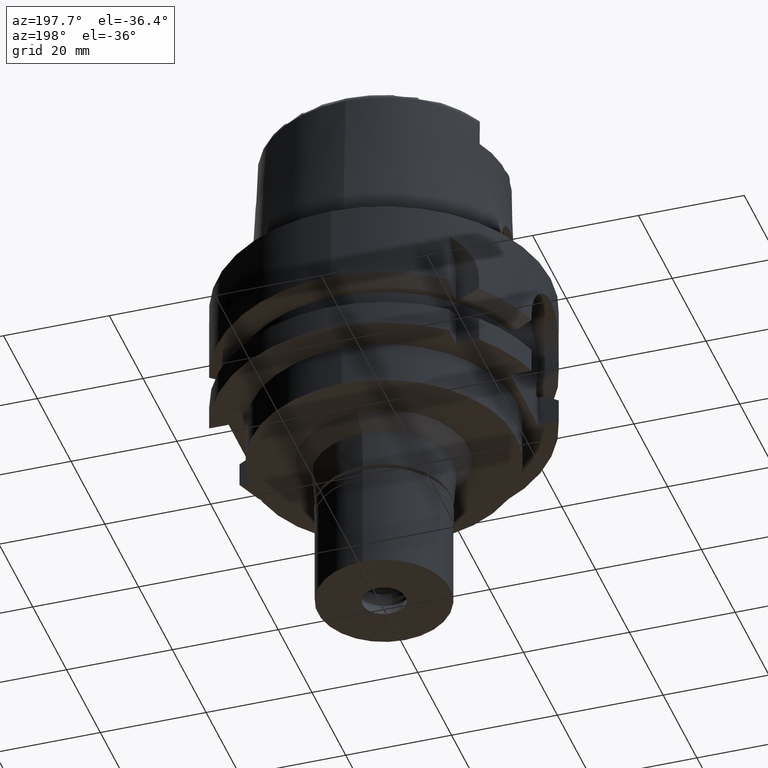
[diagram: clean part render]
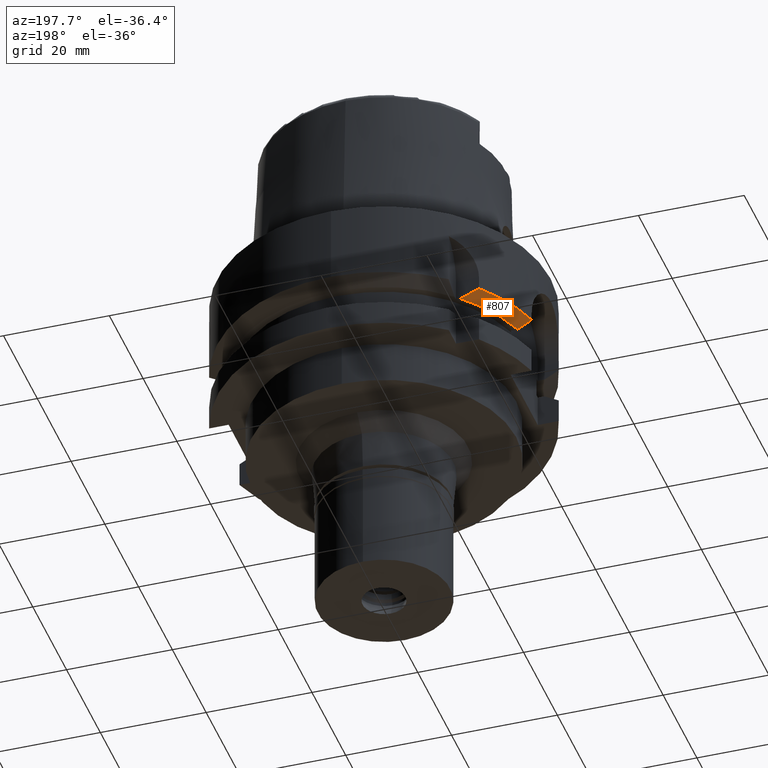
[diagram: same view with one face highlighted and labeled with its STEP entity id]
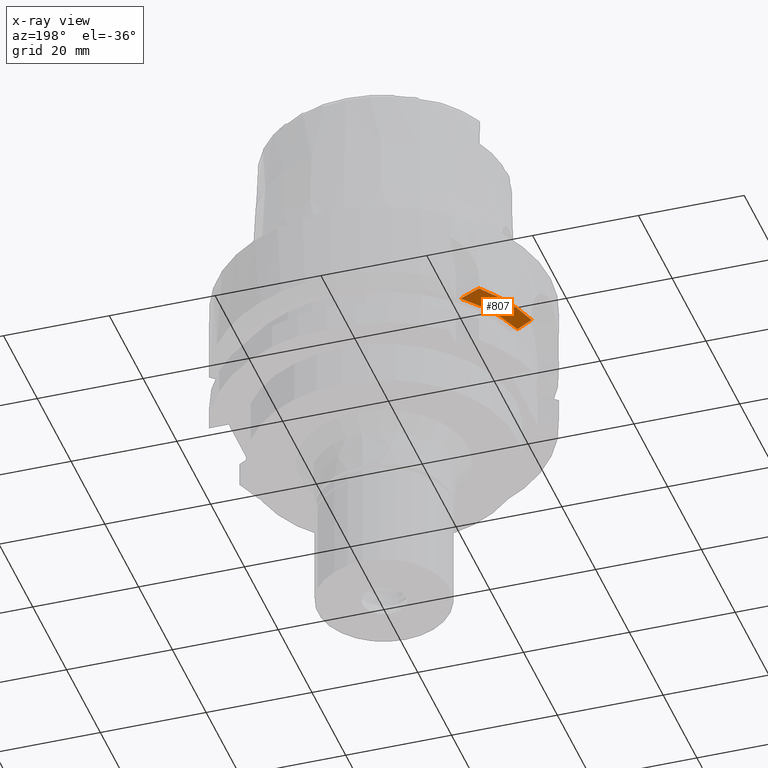
[diagram: x-ray of the same camera — body ghosted, the highlighted face saturated]
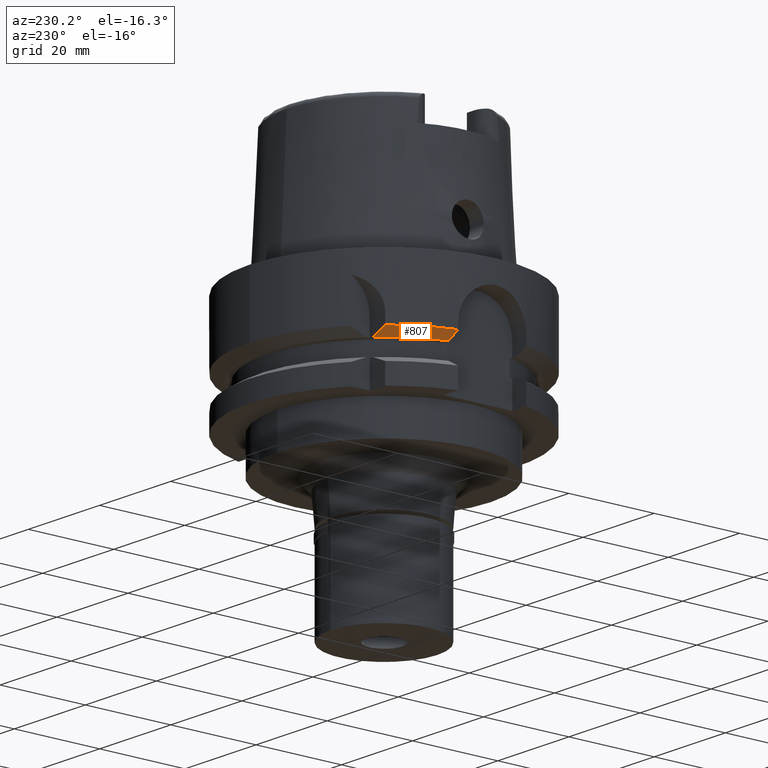
[diagram: same view with one face highlighted and labeled with its STEP entity id]
A machine part, auxiliary view. The second image highlights one B-rep face of the part: STEP entity #807.
The next image is the same camera in x-ray: the body ghosted, the highlighted face saturated — about 0% of this face is hidden behind the body in this view.
A second angle (auxiliary view) of the same face is appended — the face is thin or edge-on in the first view.
In plain terms, the highlighted conical surface has half-angle 60 deg.
Its self-contained STEP definition (entity closure, byte-faithful):
#78 = AXIS2_PLACEMENT_3D ( 'NONE', #318, #4631, #722 ) ;
#227 = CARTESIAN_POINT ( 'NONE',  ( -21.97734632246501718, 19.99997157137887882, -15.65868978081936724 ) ) ;
#318 = CARTESIAN_POINT ( 'NONE',  ( 0.0000000000000000000, 0.0000000000000000000, -14.62250092523999889 ) ) ;
#336 = CARTESIAN_POINT ( 'NONE',  ( -20.85848281391999848, 19.99998591407000248, -16.12500000000000000 ) ) ;
#423 = EDGE_CURVE ( 'NONE', #2118, #2524, #5004, .T. ) ;
#533 = EDGE_LOOP ( 'NONE', ( #5110, #5478, #4786, #2280 ) ) ;
#722 = DIRECTION ( 'NONE',  ( -0.7725773665802099233, 0.6349206349206079070, 0.0000000000000000000 ) ) ;
#753 = CARTESIAN_POINT ( 'NONE',  ( -28.06112407360999939, 7.999999497855999842, -15.96247516118999954 ) ) ;
#807 = ADVANCED_FACE ( 'NONE', ( #1945 ), #5364, .T. ) ;
#947 = EDGE_CURVE ( 'NONE', #1685, #2261, #4906, .T. ) ;
#1054 = EDGE_CURVE ( 'NONE', #2524, #2261, #3069, .T. ) ;
#1511 = CARTESIAN_POINT ( 'NONE',  ( 0.0000000000000000000, 0.0000000000000000000, -15.37375046262000033 ) ) ;
#1569 = CARTESIAN_POINT ( 'NONE',  ( -27.76817314401000303, 7.999999497855999842, -16.12500000000000000 ) ) ;
#1685 = VERTEX_POINT ( 'NONE', #4315 ) ;
#1867 = CARTESIAN_POINT ( 'NONE',  ( -28.65165998137000258, 8.000000220331999756, -15.63445398064000003 ) ) ;
#1945 = FACE_OUTER_BOUND ( 'NONE', #533, .T. ) ;
#2118 = VERTEX_POINT ( 'NONE', #3949 ) ;
#2220 = DIRECTION ( 'NONE',  ( -0.7218024800373977756, 0.6920991112635977993, 0.0000000000000000000 ) ) ;
#2261 = VERTEX_POINT ( 'NONE', #1569 ) ;
#2280 = ORIENTED_EDGE ( 'NONE', *, *, #5557, .T. ) ;
#2321 = CARTESIAN_POINT ( 'NONE',  ( -30.46719550073999727, 7.999999894983998772, -14.62250187855999961 ) ) ;
#2524 = VERTEX_POINT ( 'NONE', #2868 ) ;
#2528 = B_SPLINE_CURVE_WITH_KNOTS ( 'NONE', 3,
 ( #4135, #5541, #227, #336 ),
 .UNSPECIFIED., .F., .F.,
 ( 4, 4 ),
 ( 0.0000000000000000000, 1.000000000000000000 ),
 .UNSPECIFIED. ) ;
#2868 = CARTESIAN_POINT ( 'NONE',  ( -30.46719550073999727, 7.999999894983998772, -14.62250187855999961 ) ) ;
#3049 = DIRECTION ( 'NONE',  ( 0.0000000000000000000, 0.0000000000000000000, 1.000000000000000000 ) ) ;
#3069 = B_SPLINE_CURVE_WITH_KNOTS ( 'NONE', 3,
 ( #2321, #3242, #4482, #1867, #753, #4984 ),
 .UNSPECIFIED., .F., .F.,
 ( 4, 1, 1, 4 ),
 ( 0.0000000000000000000, 0.3333333333333000081, 0.6666666666667000474, 1.000000000000000000 ),
 .UNSPECIFIED. ) ;
#3177 = AXIS2_PLACEMENT_3D ( 'NONE', #1511, #3267, #5009 ) ;
#3242 = CARTESIAN_POINT ( 'NONE',  ( -30.16036204331000192, 7.999999894983998772, -14.79384394989000029 ) ) ;
#3267 = DIRECTION ( 'NONE',  ( 0.0000000000000000000, 0.0000000000000000000, 1.000000000000000000 ) ) ;
#3360 = AXIS2_PLACEMENT_3D ( 'NONE', #3953, #3049, #2220 ) ;
#3949 = CARTESIAN_POINT ( 'NONE',  ( -24.33618953147999875, 19.99999697720000214, -14.62251175989000096 ) ) ;
#3953 = CARTESIAN_POINT ( 'NONE',  ( 0.0000000000000000000, 0.0000000000000000000, -16.12500000000000000 ) ) ;
#4135 = CARTESIAN_POINT ( 'NONE',  ( -24.33618953147999875, 19.99999697720000214, -14.62251175989000096 ) ) ;
#4315 = CARTESIAN_POINT ( 'NONE',  ( -20.85848281391999848, 19.99998591407000248, -16.12500000000000000 ) ) ;
#4482 = CARTESIAN_POINT ( 'NONE',  ( -29.55132669530999934, 7.999999982055000736, -15.13360713325999996 ) ) ;
#4631 = DIRECTION ( 'NONE',  ( 0.0000000000000000000, 0.0000000000000000000, 1.000000000000000000 ) ) ;
#4786 = ORIENTED_EDGE ( 'NONE', *, *, #423, .F. ) ;
#4906 = CIRCLE ( 'NONE', #3360, 28.89759526419000935 ) ;
#4984 = CARTESIAN_POINT ( 'NONE',  ( -27.76817314401000303, 7.999999497855999842, -16.12500000000000000 ) ) ;
#5004 = CIRCLE ( 'NONE', #78, 31.50000000000000711 ) ;
#5009 = DIRECTION ( 'NONE',  ( 0.0000000000000000000, 1.000000000000000000, 0.0000000000000000000 ) ) ;
#5110 = ORIENTED_EDGE ( 'NONE', *, *, #947, .T. ) ;
#5364 = CONICAL_SURFACE ( 'NONE', #3177, 30.19879763209999979, 1.047197551196400456 ) ;
#5478 = ORIENTED_EDGE ( 'NONE', *, *, #1054, .F. ) ;
#5541 = CARTESIAN_POINT ( 'NONE',  ( -23.13594272500857585, 19.99999396839611876, -15.15786947098217397 ) ) ;
#5557 = EDGE_CURVE ( 'NONE', #2118, #1685, #2528, .T. ) ;